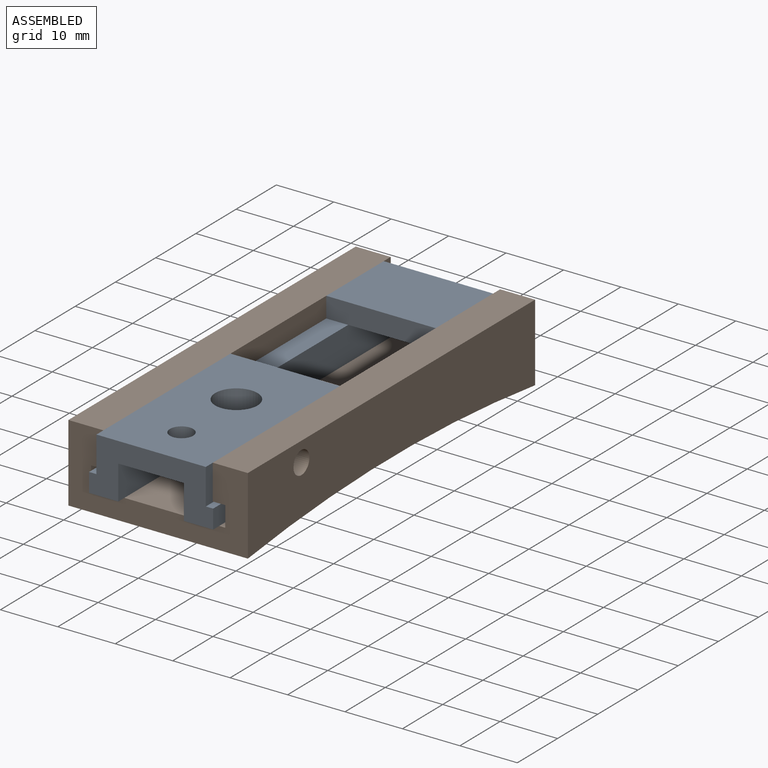
[diagram: assembled view]
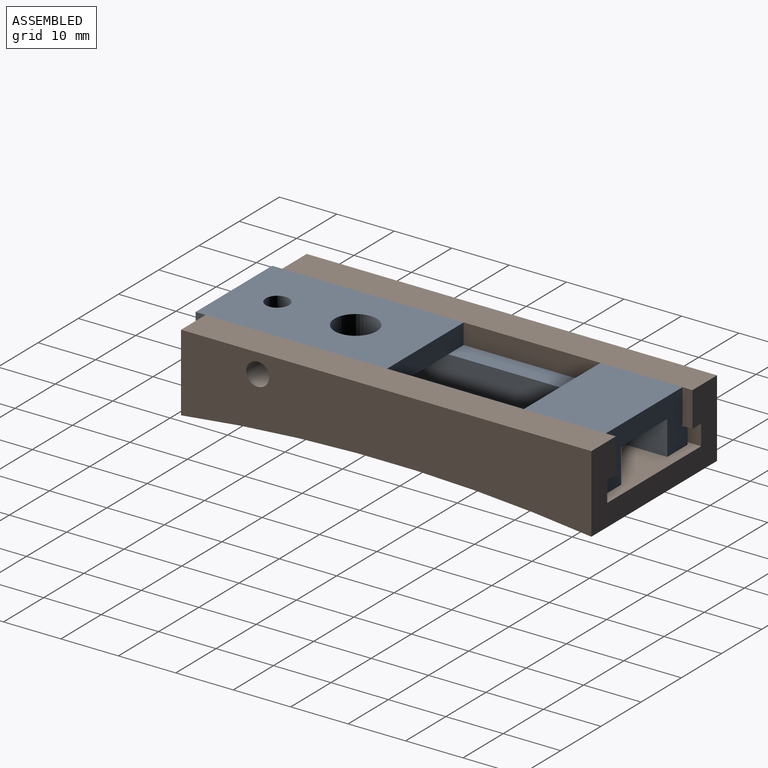
[diagram: assembled view, second angle]
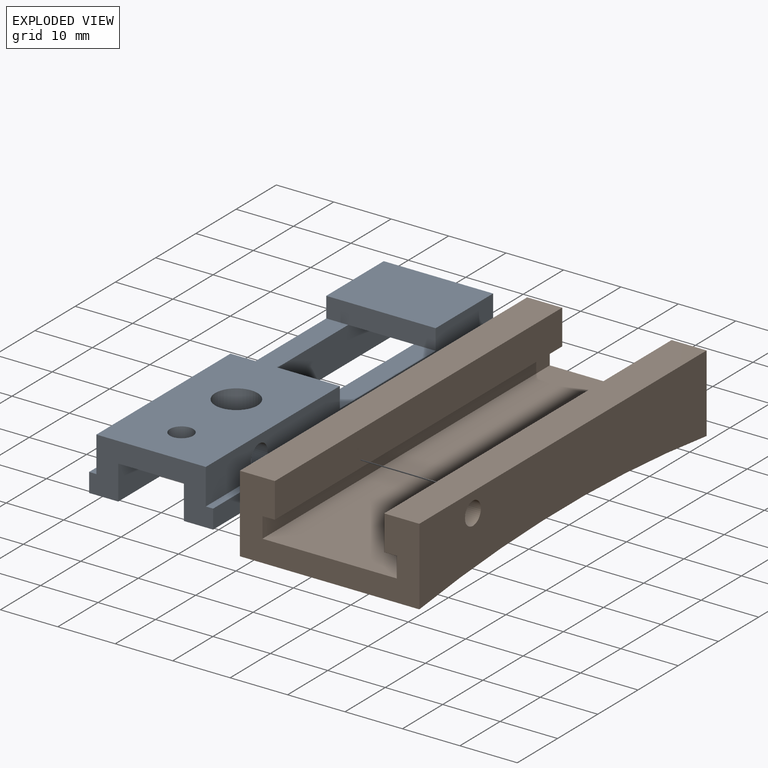
[diagram: exploded view]
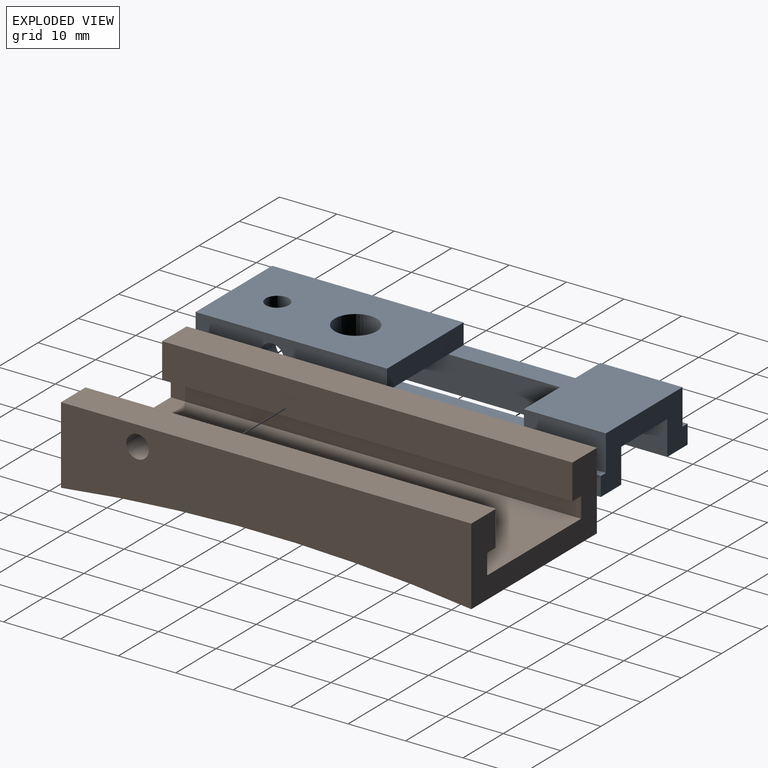
[diagram: exploded view, second angle]
ASSEMBLY  parts=2 mates=2
PART A: 24 faces, bbox 21.6x71.4x9.5 mm
  f0: plane 17.96x11.43mm, normal (0,0,-1), area 162.7mm2, adj f9,f11,f18,f19,f22
  f1: plane 19.05x14.29mm, normal (0,0,1), area 272.2mm2, adj f2,f3,f16,f21
  f2: plane 71.44x6.22mm, normal (-1,0,0), area 346.7mm2, adj f1,f5,f6,f15,f16,f19,f20,f21
  f3: plane 71.44x6.22mm, normal (1,0,0), area 346.7mm2, adj f1,f5,f14,f15,f16,f19,f21,f22
  f4: plane 14.29x11.43mm, normal (0,0,-1), area 163.3mm2, adj f9,f11,f16,f21
  f5: plane 33.34x19.05mm, normal (0,0,1), area 579.7mm2, adj f2,f3,f15,f17,f18,f22
  f6: plane 71.44x1.27mm, normal (0,0,1), area 90.7mm2, adj f2,f7,f15,f16
  f7: plane 71.44x3.3mm, normal (-1,0,0), area 235.9mm2, adj f6,f8,f15,f16
  f8: plane 71.44x5.08mm, normal (0,0,-1), area 362.9mm2, adj f7,f9,f15,f16
  f9: plane 71.44x5.97mm, normal (1,0,0), area 420.4mm2, adj f0,f4,f8,f10,f15,f16,f19,f20
  f10: plane 11.43x11.29mm, normal (0,0,-1), area 116.3mm2, adj f9,f11,f15,f17,f19
  f11: plane 71.44x5.97mm, normal (-1,0,0), area 420.4mm2, adj f0,f4,f10,f12,f15,f16,f19,f23
  f12: plane 71.44x5.08mm, normal (0,0,-1), area 362.9mm2, adj f11,f13,f15,f16
  f13: plane 71.44x3.3mm, normal (1,0,0), area 235.9mm2, adj f12,f14,f15,f16
  f14: plane 71.44x1.27mm, normal (0,0,1), area 90.7mm2, adj f3,f13,f15,f16
  f15: plane 21.59x9.53mm, normal (0,-1,0), area 121.6mm2, adj f2,f3,f5,f6,f7,f8,f9,f10
  f16: plane 21.59x9.53mm, normal (0,1,0), area 121.6mm2, adj f1,f2,f3,f4,f6,f7,f8,f9
  f17: cylinder r=2.02mm len=4.04mm, axis (0,0,1), area 45.1mm2, adj f5,f10
  f18: cylinder r=3.68mm len=7.37mm, axis (0,0,1), area 82.3mm2, adj f0,f5
  f19: cylinder r=2.04mm len=19.05mm, axis (1,0,0), area 174.2mm2, adj f0,f2,f3,f9,f10,f11
  f20: plane 23.81x3.81mm, normal (0,0,1), area 90.7mm2, adj f2,f9,f21,f22
  f21: plane 19.05x3.56mm, normal (0,-1,0), area 67.7mm2, adj f1,f2,f3,f4,f20,f23
  f22: plane 19.05x3.56mm, normal (0,1,0), area 67.7mm2, adj f0,f2,f3,f5,f20,f23
  f23: plane 23.81x3.81mm, normal (0,0,1), area 90.7mm2, adj f3,f11,f21,f22
PART B: 15 faces, bbox 31.2x71.4x13.5 mm
  f0: plane 71.44x13.46mm, normal (1,0,0), area 840.4mm2, adj f4,f11,f12,f13,f14
  f1: plane 71.44x6.1mm, normal (1,0,0), area 435.5mm2, adj f2,f10,f11,f12
  f2: plane 71.44x6.1mm, normal (0,0,1), area 435.5mm2, adj f1,f3,f11,f12
  f3: plane 71.44x13.46mm, normal (-1,0,0), area 852.7mm2, adj f2,f11,f12,f14
  f4: plane 71.44x6.1mm, normal (0,0,1), area 435.5mm2, adj f0,f5,f11,f12
  f5: plane 71.44x6.1mm, normal (-1,0,0), area 423.2mm2, adj f4,f6,f11,f12,f13
  f6: plane 71.44x2.16mm, normal (0,0,-1), area 154.2mm2, adj f5,f7,f11,f12
  f7: plane 71.44x3.56mm, normal (-1,0,0), area 254mm2, adj f6,f8,f11,f12
  f8: plane 71.44x23.37mm, normal (0,0,1), area 1669.4mm2, adj f7,f9,f11,f12
  f9: plane 71.44x3.56mm, normal (1,0,0), area 254mm2, adj f8,f10,f11,f12
  f10: plane 71.44x2.16mm, normal (0,0,-1), area 154.2mm2, adj f1,f9,f11,f12
  f11: plane 31.24x13.46mm, normal (0,-1,0), area 221.4mm2, adj f0,f1,f2,f3,f4,f5,f6,f7
  f12: plane 31.24x13.46mm, normal (0,1,0), area 221.4mm2, adj f0,f1,f2,f3,f4,f5,f6,f7
  f13: cylinder r=1.98mm len=6.1mm, axis (1,0,0), area 75.9mm2, adj f0,f5
  f14: cylinder r=280.2mm len=71.44mm, axis (1,0,0), area 2237.9mm2, adj f0,f3,f11,f12
PLACE A t=(-25.12,21.95,-26.21)mm
PLACE B t=(-37.83,23.69,-28.87)mm
MATE planar A.f2 <-> B.f1  axis (-1,0,0) through (-34.65,-15.25,-20.11)mm
MATE planar A.f1 <-> B.f2  axis (0,0,1) through (-25.12,14.81,-16.69)mm
